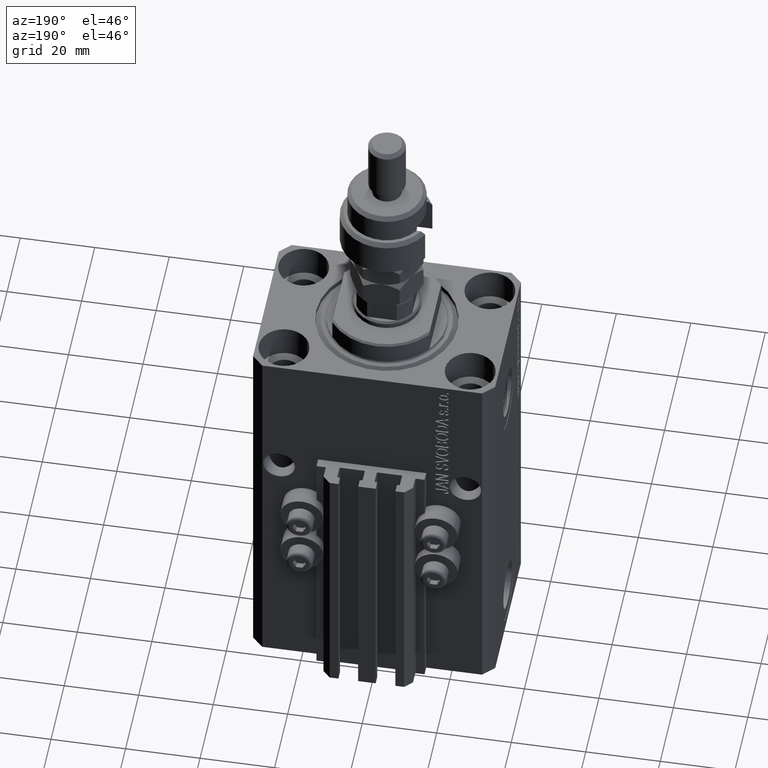
[diagram: clean part render]
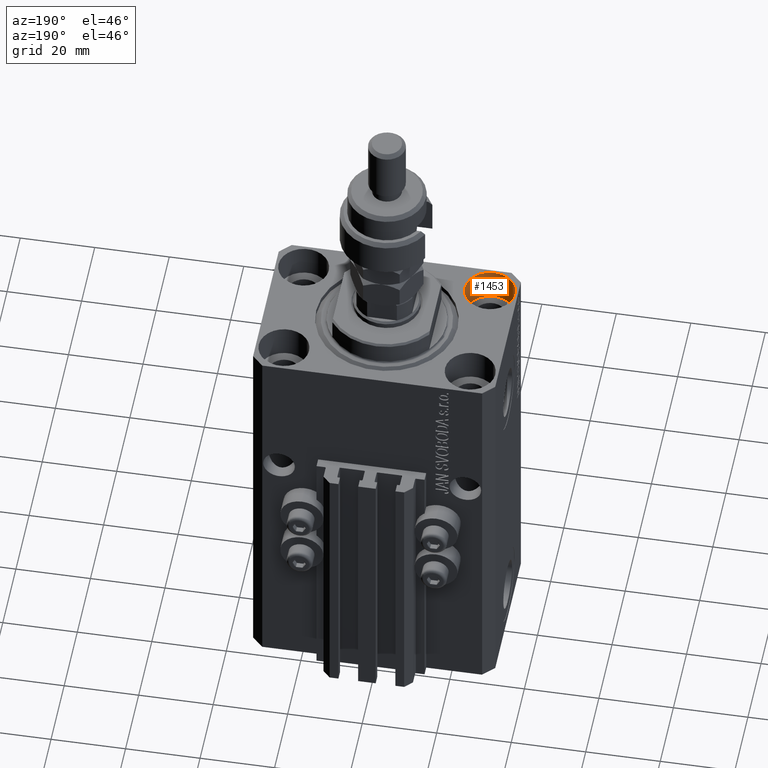
[diagram: same view with one face highlighted and labeled with its STEP entity id]
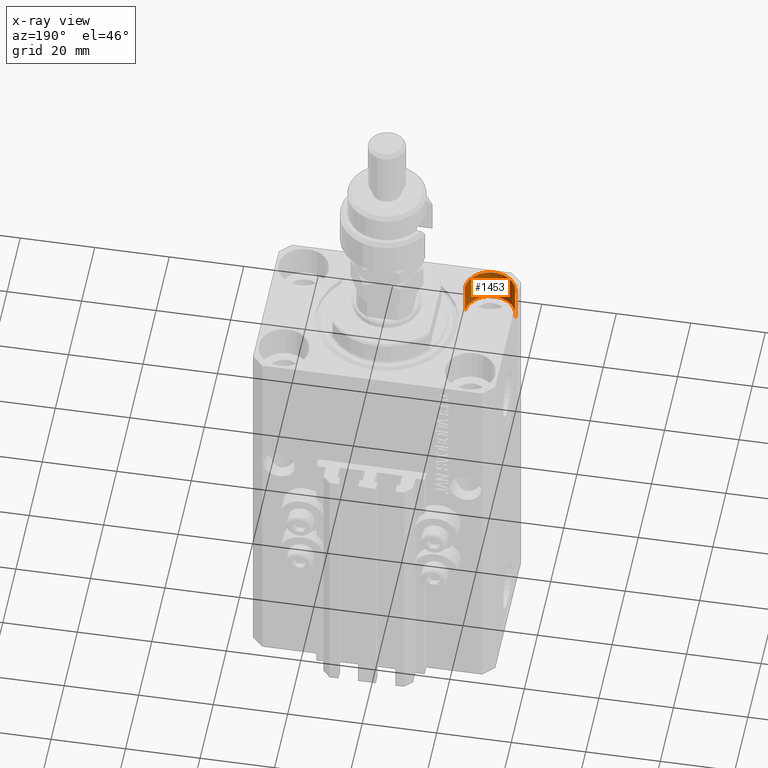
[diagram: x-ray of the same camera — body ghosted, the highlighted face saturated]
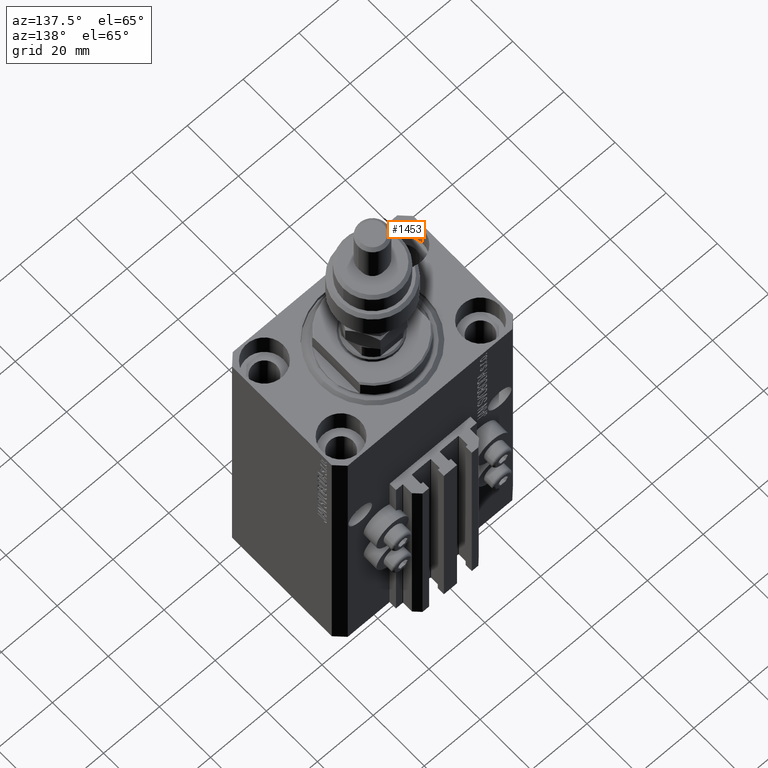
[diagram: same view with one face highlighted and labeled with its STEP entity id]
A machine part, auxiliary view. The second image highlights one B-rep face of the part: STEP entity #1453.
The next image is the same camera in x-ray: the body ghosted, the highlighted face saturated — about 0% of this face is hidden behind the body in this view.
A second angle (auxiliary view) of the same face is appended — the face is thin or edge-on in the first view.
In plain terms, the highlighted cylindrical surface (edge-blend (fillet) strip) has radius 6.75 mm, axis along (0, 0, 1).
Its self-contained STEP definition (entity closure, byte-faithful):
#1296 = CARTESIAN_POINT ( 'NONE',  ( -18.24999999995846167, -15.00000000000000000, 0.000000000000000000 ) ) ;
#1453 = ADVANCED_FACE ( 'NONE', ( #32549 ), #24200, .F. ) ;
#2057 = AXIS2_PLACEMENT_3D ( 'NONE', #44660, #37067, #10047 ) ;
#7501 = VERTEX_POINT ( 'NONE', #33855 ) ;
#9198 = ORIENTED_EDGE ( 'NONE', *, *, #23750, .F. ) ;
#9723 = ORIENTED_EDGE ( 'NONE', *, *, #49380, .F. ) ;
#10047 = DIRECTION ( 'NONE',  ( 1.000000000000000000, 0.000000000000000000, 0.000000000000000000 ) ) ;
#12926 = LINE ( 'NONE', #28811, #24734 ) ;
#14561 = CARTESIAN_POINT ( 'NONE',  ( -25.00000000000000355, -15.00000000000000000, 0.000000000000000000 ) ) ;
#14808 = CARTESIAN_POINT ( 'NONE',  ( -31.75000000004154899, -15.00000000000000000, -9.000000000000000000 ) ) ;
#14967 = AXIS2_PLACEMENT_3D ( 'NONE', #14561, #45393, #26176 ) ;
#15104 = ORIENTED_EDGE ( 'NONE', *, *, #46586, .T. ) ;
#20635 = EDGE_CURVE ( 'NONE', #30642, #7501, #49421, .T. ) ;
#23750 = EDGE_CURVE ( 'NONE', #30642, #28396, #27060, .T. ) ;
#24200 = CYLINDRICAL_SURFACE ( 'NONE', #29828, 6.750000000041541881 ) ;
#24274 = DIRECTION ( 'NONE',  ( -0.000000000000000000, -0.000000000000000000, 1.000000000000000000 ) ) ;
#24447 = CARTESIAN_POINT ( 'NONE',  ( -25.00000000000000355, -15.00000000000000000, -9.000000000000000000 ) ) ;
#24528 = VECTOR ( 'NONE', #30227, 1000.000000000000000 ) ;
#24734 = VECTOR ( 'NONE', #24274, 1000.000000000000000 ) ;
#25188 = DIRECTION ( 'NONE',  ( 1.000000000000000000, 0.000000000000000000, 0.000000000000000000 ) ) ;
#26176 = DIRECTION ( 'NONE',  ( 1.000000000000000000, 0.000000000000000000, 0.000000000000000000 ) ) ;
#26659 = EDGE_LOOP ( 'NONE', ( #9198, #35733, #15104, #9723 ) ) ;
#27060 = CIRCLE ( 'NONE', #2057, 6.750000000041541881 ) ;
#28396 = VERTEX_POINT ( 'NONE', #33522 ) ;
#28811 = CARTESIAN_POINT ( 'NONE',  ( -18.24999999995846167, -15.00000000000000000, -9.000000000000000000 ) ) ;
#29828 = AXIS2_PLACEMENT_3D ( 'NONE', #24447, #47710, #25188 ) ;
#30227 = DIRECTION ( 'NONE',  ( -0.000000000000000000, -0.000000000000000000, 1.000000000000000000 ) ) ;
#30300 = CIRCLE ( 'NONE', #14967, 6.750000000041541881 ) ;
#30642 = VERTEX_POINT ( 'NONE', #47314 ) ;
#32549 = FACE_OUTER_BOUND ( 'NONE', #26659, .T. ) ;
#33522 = CARTESIAN_POINT ( 'NONE',  ( -18.24999999995846167, -15.00000000000000000, -9.000000000000000000 ) ) ;
#33855 = CARTESIAN_POINT ( 'NONE',  ( -31.75000000004154899, -15.00000000000000000, 0.000000000000000000 ) ) ;
#35733 = ORIENTED_EDGE ( 'NONE', *, *, #20635, .T. ) ;
#37067 = DIRECTION ( 'NONE',  ( 0.000000000000000000, 0.000000000000000000, 1.000000000000000000 ) ) ;
#42513 = VERTEX_POINT ( 'NONE', #1296 ) ;
#44660 = CARTESIAN_POINT ( 'NONE',  ( -25.00000000000000355, -15.00000000000000000, -9.000000000000000000 ) ) ;
#45393 = DIRECTION ( 'NONE',  ( 0.000000000000000000, 0.000000000000000000, 1.000000000000000000 ) ) ;
#46586 = EDGE_CURVE ( 'NONE', #7501, #42513, #30300, .T. ) ;
#47314 = CARTESIAN_POINT ( 'NONE',  ( -31.75000000004154899, -15.00000000000000000, -9.000000000000000000 ) ) ;
#47710 = DIRECTION ( 'NONE',  ( -0.000000000000000000, -0.000000000000000000, 1.000000000000000000 ) ) ;
#49380 = EDGE_CURVE ( 'NONE', #28396, #42513, #12926, .T. ) ;
#49421 = LINE ( 'NONE', #14808, #24528 ) ;